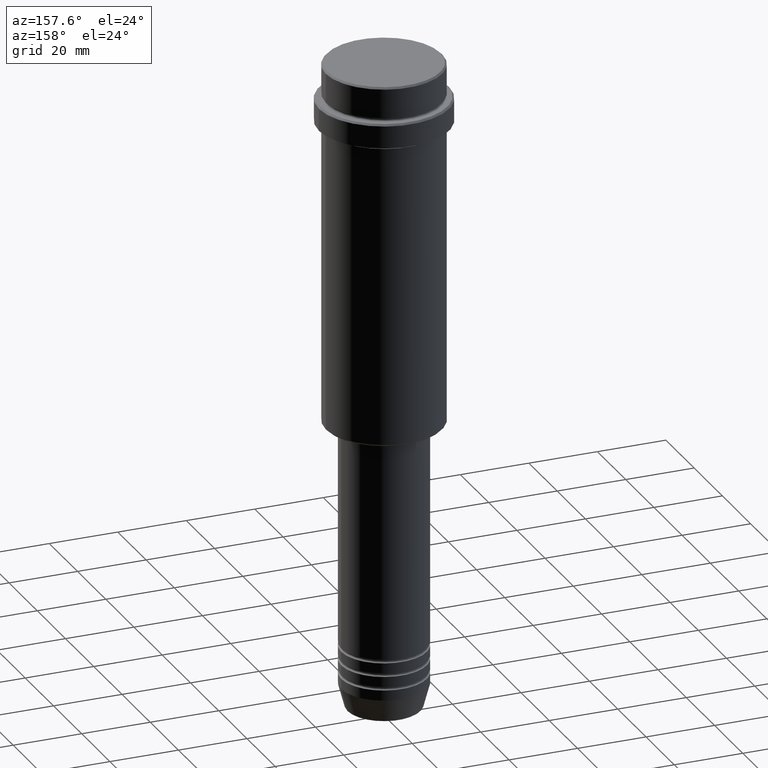
[diagram: clean part render]
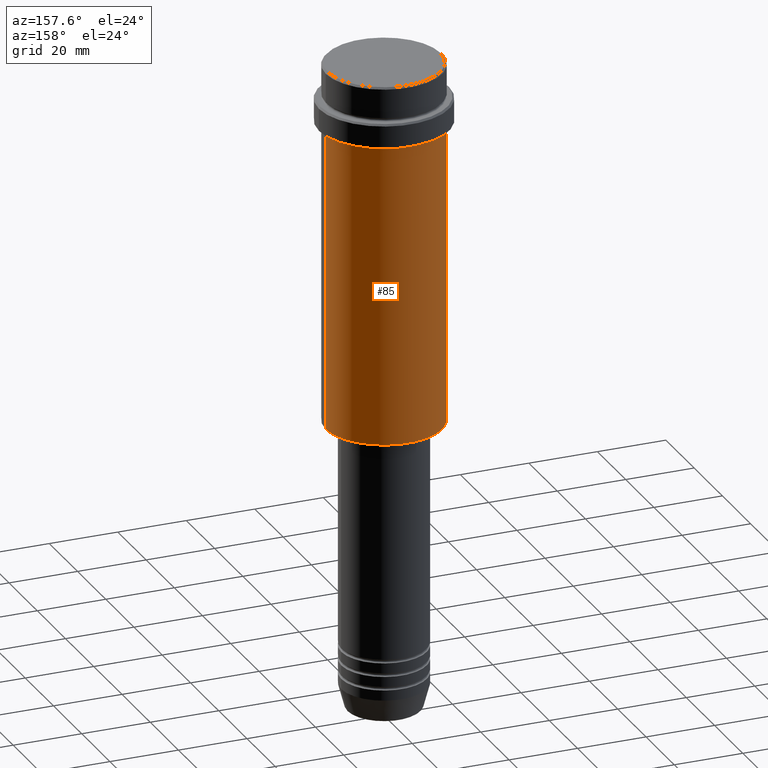
[diagram: same view with one face highlighted and labeled with its STEP entity id]
A machine part, auxiliary view. The second image highlights one B-rep face of the part: STEP entity #85.
In plain terms, the highlighted cylindrical surface (partial cylindrical patch) has radius 17 mm, axis along (-0, -0, 1).
Its self-contained STEP definition (entity closure, byte-faithful):
#10 = DIRECTION ( 'NONE',  ( -0.000000000000000000, -0.000000000000000000, 1.000000000000000000 ) ) ;
#49 = VECTOR ( 'NONE', #749, 1000.000000000000000 ) ;
#85 = ADVANCED_FACE ( 'NONE', ( #1329 ), #222, .T. ) ;
#105 = DIRECTION ( 'NONE',  ( -1.000000000000000000, 0.000000000000000000, 0.000000000000000000 ) ) ;
#117 = DIRECTION ( 'NONE',  ( -0.000000000000000000, -0.000000000000000000, 1.000000000000000000 ) ) ;
#143 = EDGE_LOOP ( 'NONE', ( #1310, #1376, #1007, #326 ) ) ;
#196 = VERTEX_POINT ( 'NONE', #990 ) ;
#222 = CYLINDRICAL_SURFACE ( 'NONE', #465, 16.99999999999998934 ) ;
#241 = DIRECTION ( 'NONE',  ( 1.000000000000000000, 0.000000000000000000, 0.000000000000000000 ) ) ;
#258 = CARTESIAN_POINT ( 'NONE',  ( 0.000000000000000000, 0.000000000000000000, -105.5000000000000284 ) ) ;
#308 = CARTESIAN_POINT ( 'NONE',  ( -16.99999999999998934, 2.081899558550499491E-15, 0.000000000000000000 ) ) ;
#326 = ORIENTED_EDGE ( 'NONE', *, *, #1293, .F. ) ;
#337 = CARTESIAN_POINT ( 'NONE',  ( 16.99999999999997868, 0.000000000000000000, -18.00000000000000711 ) ) ;
#357 = DIRECTION ( 'NONE',  ( -0.000000000000000000, -0.000000000000000000, 1.000000000000000000 ) ) ;
#465 = AXIS2_PLACEMENT_3D ( 'NONE', #660, #357, #241 ) ;
#494 = CARTESIAN_POINT ( 'NONE',  ( 16.99999999999998934, 0.000000000000000000, -105.5000000000000284 ) ) ;
#508 = CIRCLE ( 'NONE', #1226, 16.99999999999998934 ) ;
#535 = CARTESIAN_POINT ( 'NONE',  ( 16.99999999999998934, 0.000000000000000000, 0.000000000000000000 ) ) ;
#600 = CARTESIAN_POINT ( 'NONE',  ( -16.99999999999998934, 2.081899558550499491E-15, -105.5000000000000284 ) ) ;
#660 = CARTESIAN_POINT ( 'NONE',  ( 0.000000000000000000, 0.000000000000000000, 0.000000000000000000 ) ) ;
#741 = VERTEX_POINT ( 'NONE', #494 ) ;
#749 = DIRECTION ( 'NONE',  ( -0.000000000000000000, -0.000000000000000000, 1.000000000000000000 ) ) ;
#758 = AXIS2_PLACEMENT_3D ( 'NONE', #1110, #117, #1206 ) ;
#793 = EDGE_CURVE ( 'NONE', #1038, #196, #1037, .T. ) ;
#930 = VECTOR ( 'NONE', #10, 1000.000000000000000 ) ;
#960 = VERTEX_POINT ( 'NONE', #600 ) ;
#990 = CARTESIAN_POINT ( 'NONE',  ( -16.99999999999997868, 2.081899558550498702E-15, -18.00000000000000711 ) ) ;
#995 = EDGE_CURVE ( 'NONE', #741, #960, #508, .T. ) ;
#1007 = ORIENTED_EDGE ( 'NONE', *, *, #793, .F. ) ;
#1037 = CIRCLE ( 'NONE', #758, 16.99999999999997868 ) ;
#1038 = VERTEX_POINT ( 'NONE', #337 ) ;
#1064 = LINE ( 'NONE', #535, #930 ) ;
#1090 = LINE ( 'NONE', #308, #49 ) ;
#1110 = CARTESIAN_POINT ( 'NONE',  ( 0.000000000000000000, 0.000000000000000000, -18.00000000000000711 ) ) ;
#1118 = DIRECTION ( 'NONE',  ( -0.000000000000000000, -0.000000000000000000, 1.000000000000000000 ) ) ;
#1206 = DIRECTION ( 'NONE',  ( 1.000000000000000000, 0.000000000000000000, 0.000000000000000000 ) ) ;
#1226 = AXIS2_PLACEMENT_3D ( 'NONE', #258, #1118, #105 ) ;
#1293 = EDGE_CURVE ( 'NONE', #741, #1038, #1064, .T. ) ;
#1310 = ORIENTED_EDGE ( 'NONE', *, *, #995, .T. ) ;
#1329 = FACE_OUTER_BOUND ( 'NONE', #143, .T. ) ;
#1356 = EDGE_CURVE ( 'NONE', #960, #196, #1090, .T. ) ;
#1376 = ORIENTED_EDGE ( 'NONE', *, *, #1356, .T. ) ;